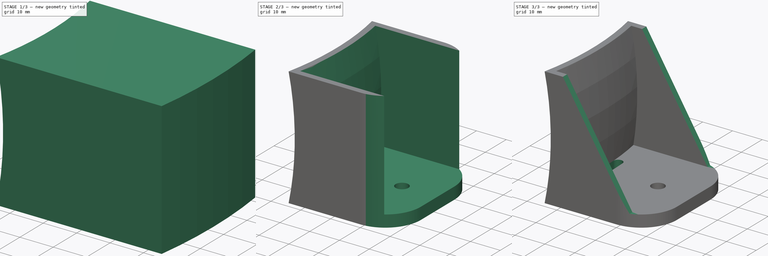
[diagram: build sequence overview — one tinted view per stage of 3, left to right]
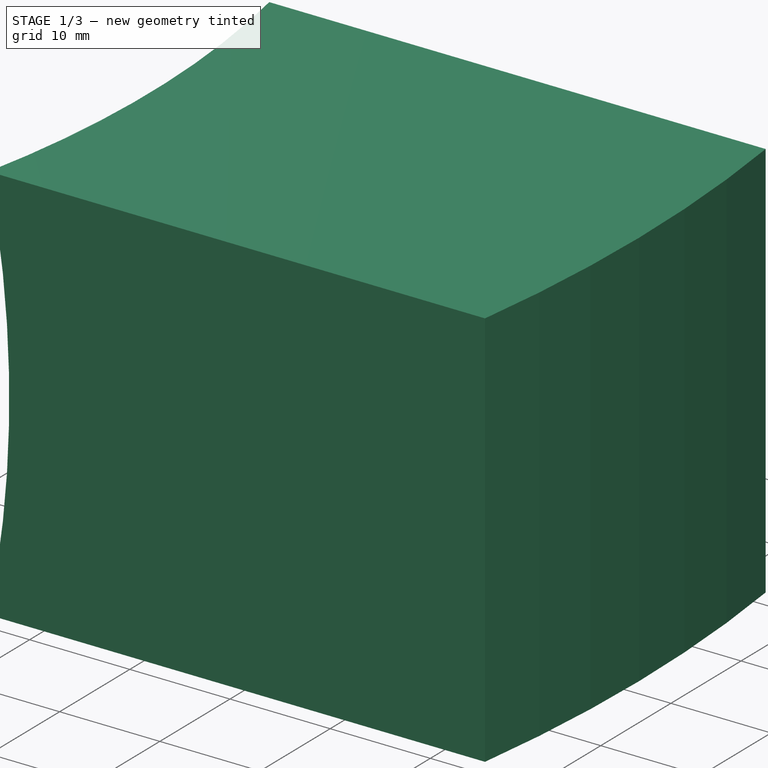
[diagram: stage 1 of 3 — iso view after this stage's code; geometry added in this stage tinted green]
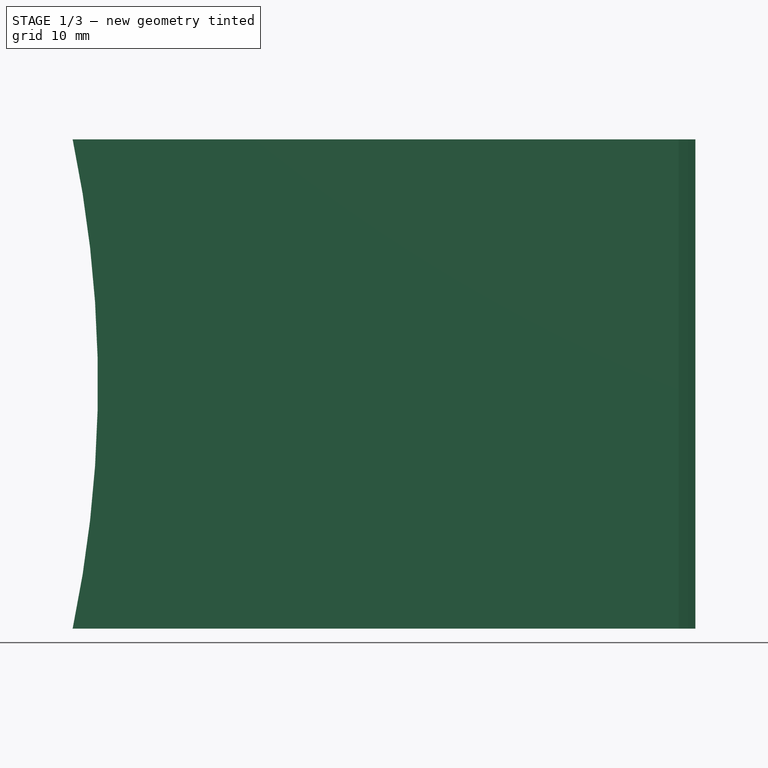
[diagram: stage 1 of 3 — front view after this stage's code; geometry added in this stage tinted green]
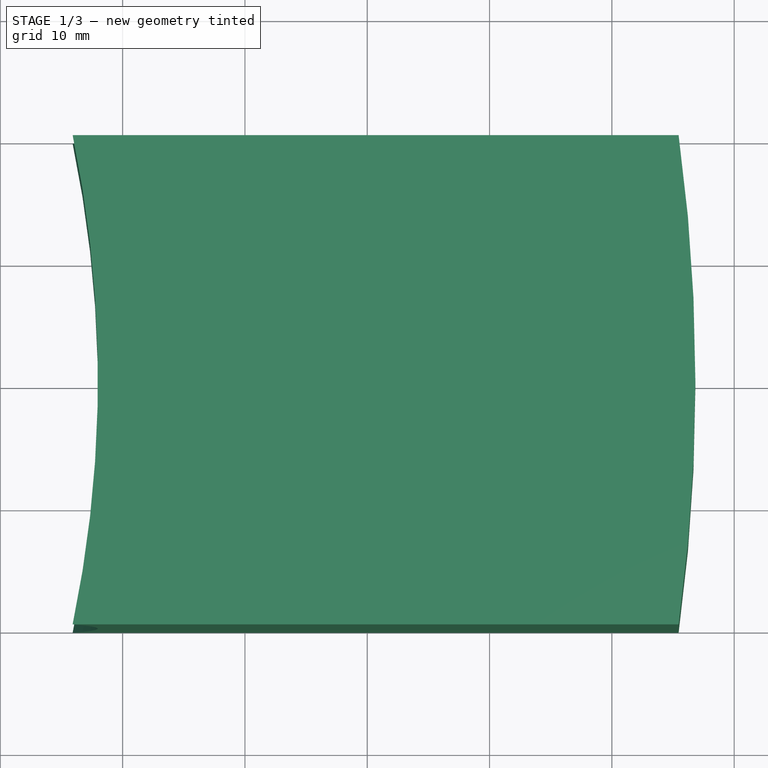
[diagram: stage 1 of 3 — top view after this stage's code; geometry added in this stage tinted green]
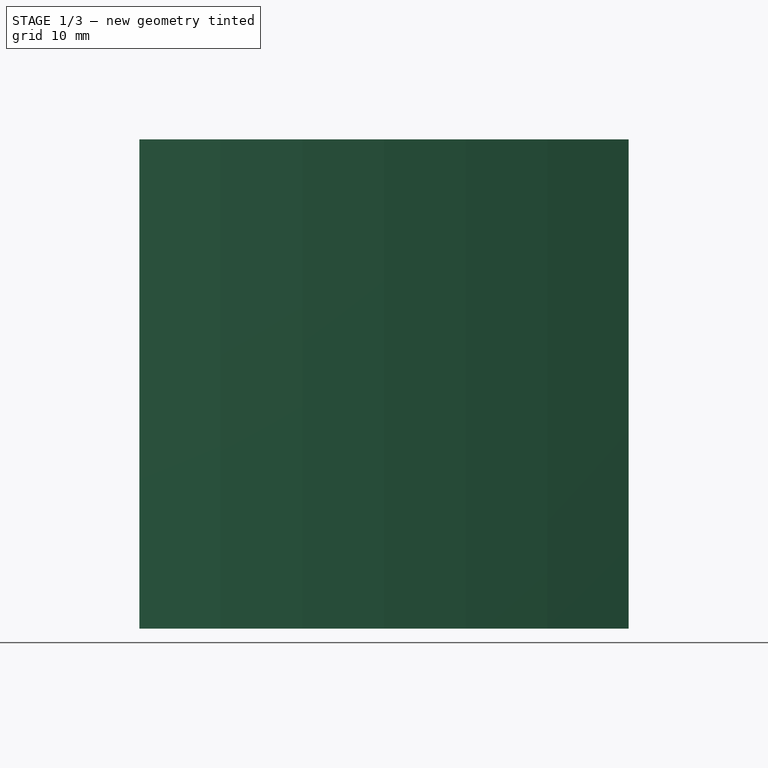
[diagram: stage 1 of 3 — right view after this stage's code; geometry added in this stage tinted green]
FCSTD DOCUMENT  (FreeCAD 0.20R29177 +426 (Git))
Label: SensorMountBase
License: All rights reserved
LicenseURL: http://en.wikipedia.org/wiki/All_rights_reserved
objects: Sketcher::SketchObject×6, PartDesign::Pocket×4, App::DocumentObjectGroup×3, PartDesign::CoordinateSystem×2, PartDesign::Revolution×1, PartDesign::Groove×1, PartDesign::Body×1, App::FeaturePython×1, App::Part×1
note: 21 computed .brp shape members not serialized (recipe doc carries the construction recipe); baked Part::Feature solids carry a one-line shape summary decoded from their .brp

FEATURE [Sketcher::SketchObject] Sketch  label="SectionSketch"
  FullyConstrained = true
  MapMode = 5
  Placement = pos=(0,0,0) rot=(1,0,0;1.5708rad)
  Support = -> [XZ_Plane]
  sketch-geometry (5):
    g0: ArcOfCircle CenterX=0 CenterY=0 CenterZ=0 NormalX=0 NormalY=0 NormalZ=1 AngleXU=0 Radius=100 StartAngle=6.03051 EndAngle=6.53587
    g1: LineSegment StartX=96.8246 StartY=25 StartZ=0 EndX=146.825 EndY=25 EndZ=0
    g2: LineSegment StartX=146.825 StartY=25 StartZ=0 EndX=146.825 EndY=-25 EndZ=0
    g3: LineSegment StartX=146.825 StartY=-25 StartZ=0 EndX=96.8246 EndY=-25 EndZ=0
    g4: LineSegment StartX=96.8246 StartY=-25 StartZ=0 EndX=96.8246 EndY=25 EndZ=0
  constraints (14):
    c: Radius(g0) = 100  'Radius'
    c: DistanceY(g0,g0) = 50
    c: Coincident(g0,g1)
    c: Coincident(g1,g2)
    c: Vertical(g2)
    c: Coincident(g2,g3)
    c: Coincident(g3,g0)
    c: Horizontal(g3)
    c: Horizontal(g1)
    c: DistanceX(g1,g1) = 50
    c: Coincident(g4,g0)
    c: Coincident(g4,g0)
    c: Vertical(g4)
    c: Coincident(g0,g-1)
FEATURE [PartDesign::Revolution] Revolution  label="Section"
  Angle = 45
  Axis = (0,2e-16,1)
  Base = (0,0,0)
  Midplane = true
  Placement = pos=(0,0,0) rot=(1,0,0;1.5708rad)
  Profile = -> Sketch
  ReferenceAxis = -> Sketch [V_Axis]
  Reversed = true
FEATURE [Sketcher::SketchObject] Sketch001  label="BlockoutSketch"
  FullyConstrained = true
  MapMode = 5
  Placement = pos=(0,0,0) rot=(0.57735,0.57735,0.57735;2.0944rad)
  Support = -> [YZ_Plane]
  sketch-geometry (10):
    g0: LineSegment StartX=-20 StartY=-20 StartZ=0 EndX=-20 EndY=20 EndZ=0
    g1: LineSegment StartX=-20 StartY=20 StartZ=0 EndX=20 EndY=20 EndZ=0
    g2: LineSegment StartX=20 StartY=20 StartZ=0 EndX=20 EndY=-20 EndZ=0
    g3: LineSegment StartX=20 StartY=-20 StartZ=0 EndX=-20 EndY=-20 EndZ=0
    g4: GeomPoint X=0 Y=0 Z=0
    g5: LineSegment StartX=-100 StartY=-50 StartZ=0 EndX=-100 EndY=50 EndZ=0
    g6: LineSegment StartX=-100 StartY=50 StartZ=0 EndX=100 EndY=50 EndZ=0
    g7: LineSegment StartX=100 StartY=50 StartZ=0 EndX=100 EndY=-50 EndZ=0
    g8: LineSegment StartX=100 StartY=-50 StartZ=0 EndX=-100 EndY=-50 EndZ=0
    g9: GeomPoint X=0 Y=0 Z=0
  constraints (24):
    c: Coincident(g0,g1)
    c: Coincident(g1,g2)
    c: Coincident(g2,g3)
    c: Coincident(g3,g0)
    c: Horizontal(g1)
    c: Horizontal(g3)
    c: Vertical(g0)
    c: Vertical(g2)
    c: Symmetric(g1,g0,g4)
    c: Coincident(g4,g-1)
    c: Coincident(g5,g6)
    c: Coincident(g6,g7)
    c: Coincident(g7,g8)
    c: Coincident(g8,g5)
    c: Horizontal(g6)
    c: Horizontal(g8)
    c: Vertical(g5)
    c: Vertical(g7)
    c: Symmetric(g6,g5,g9)
    c: Coincident(g9,g4)
    c: DistanceX(g6,g6) = 200
    c: DistanceY(g7,g7) = 100
    c: DistanceX(g1,g1) = 40  'Width'
    c: DistanceY(g2,g2) = 40  'Height'
FEATURE [PartDesign::Pocket] Pocket  label="Blockout"
  BaseFeature = -> Revolution
  Direction = (-1,2e-16,-3e-16)
  Length = 5
  Length2 = 5
  Placement = pos=(0,0,0) rot=(1,0,0;1.5708rad)
  Profile = -> Sketch001
  ReferenceAxis = -> Sketch001 [N_Axis]
  Reversed = true
  Type = 1
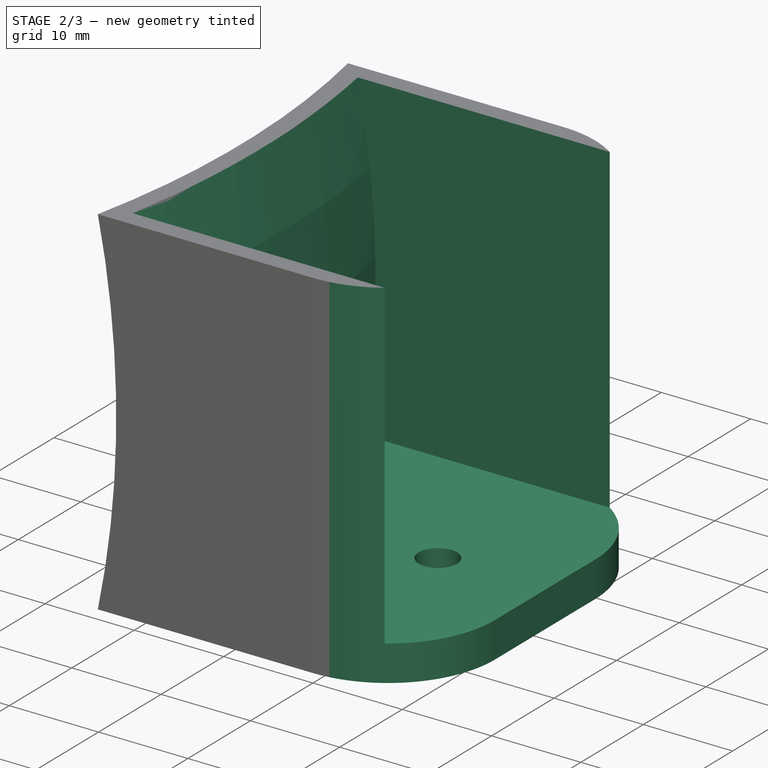
[diagram: stage 2 of 3 — iso view after this stage's code; geometry added in this stage tinted green]
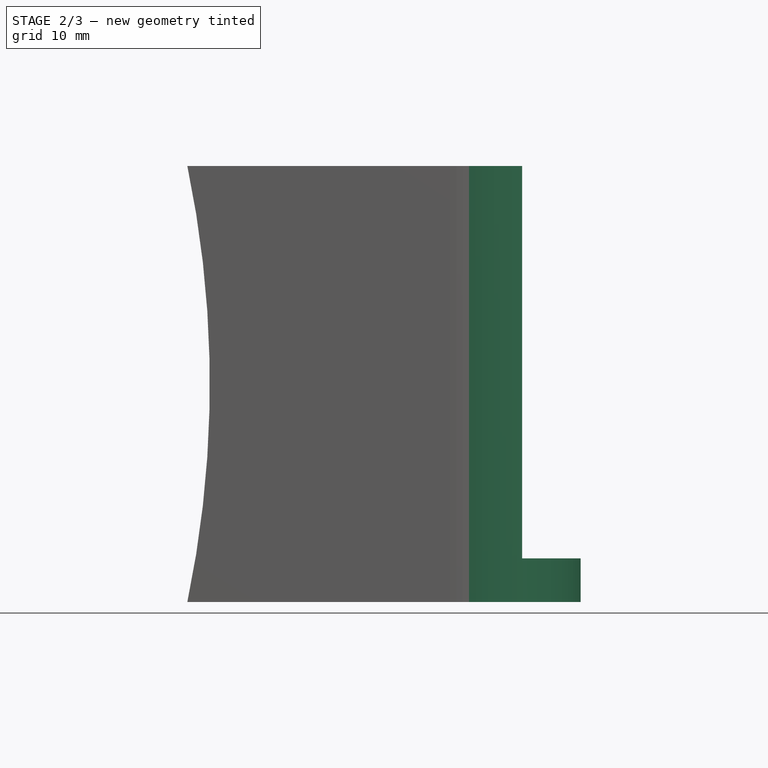
[diagram: stage 2 of 3 — front view after this stage's code; geometry added in this stage tinted green]
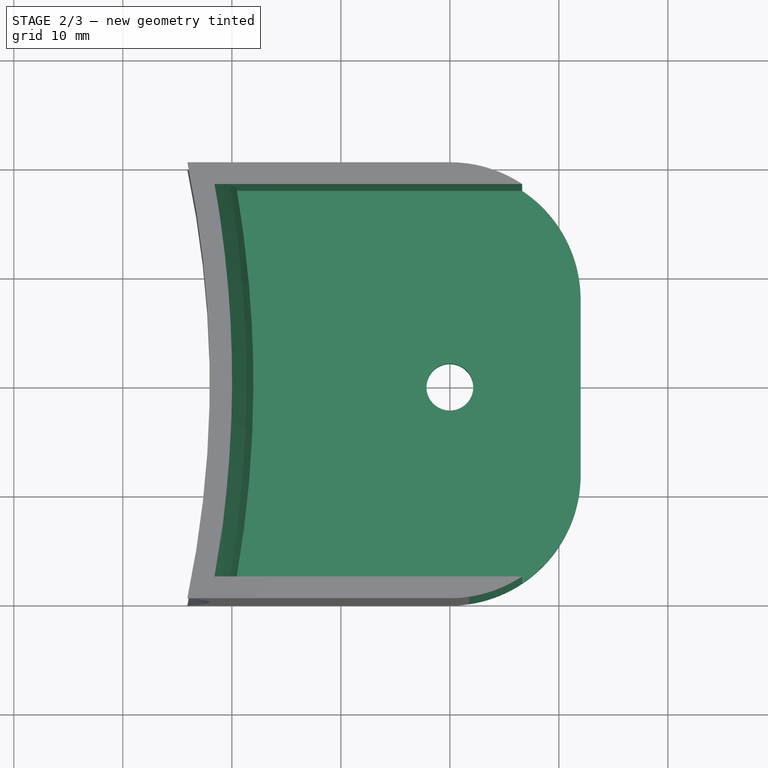
[diagram: stage 2 of 3 — top view after this stage's code; geometry added in this stage tinted green]
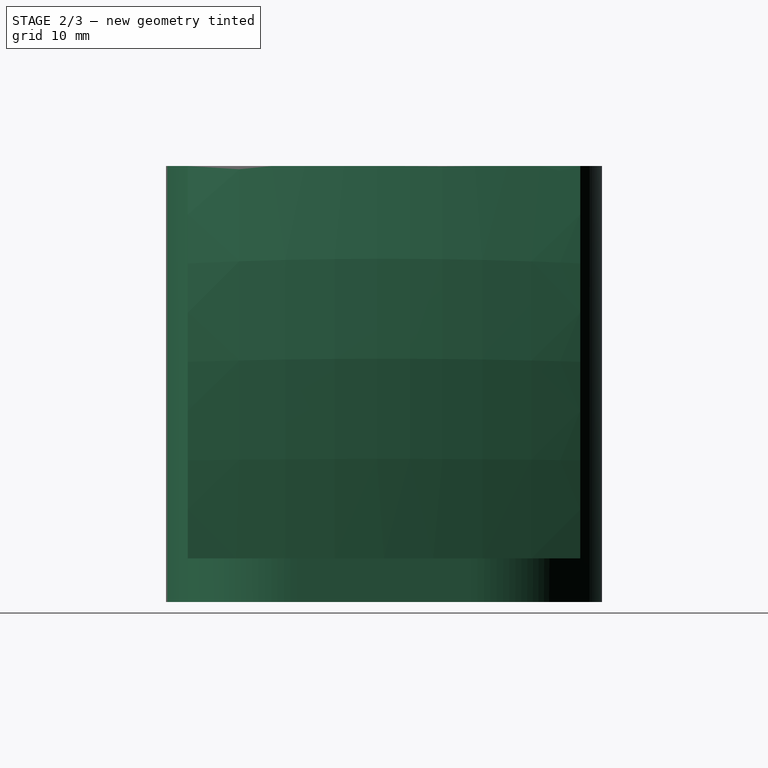
[diagram: stage 2 of 3 — right view after this stage's code; geometry added in this stage tinted green]
FEATURE [Sketcher::SketchObject] Sketch002
  FullyConstrained = true
  MapMode = 5
  Support = -> [XY_Plane]
  expr: Constraints[13] = <<SectionSketch>>.Constraints.Radius + 20mm
  expr: Constraints[20] = <<BlockoutSketch>>.Constraints.Width
  sketch-geometry (11):
    g0: LineSegment StartX=120 StartY=20 StartZ=0 EndX=120 EndY=30 EndZ=0
    g1: LineSegment StartX=120 StartY=30 StartZ=0 EndX=150 EndY=30 EndZ=0
    g2: LineSegment StartX=150 StartY=30 StartZ=0 EndX=150 EndY=-30 EndZ=0
    g3: LineSegment StartX=150 StartY=-30 StartZ=0 EndX=120 EndY=-30 EndZ=0
    g4: LineSegment StartX=120 StartY=-30 StartZ=0 EndX=120 EndY=-20 EndZ=0
    g5: Circle CenterX=120 CenterY=0 CenterZ=0 NormalX=0 NormalY=0 NormalZ=1 AngleXU=0 Radius=2.15
    g6: LineSegment StartX=120 StartY=20 StartZ=0 EndX=120 EndY=0 EndZ=0
    g7: LineSegment StartX=120 StartY=-20 StartZ=0 EndX=120 EndY=0 EndZ=0
    g8: ArcOfCircle CenterX=120 CenterY=-8 CenterZ=0 NormalX=0 NormalY=0 NormalZ=1 AngleXU=0 Radius=12 StartAngle=4.71239 EndAngle=6.28319
    g9: ArcOfCircle CenterX=120 CenterY=8 CenterZ=0 NormalX=0 NormalY=0 NormalZ=1 AngleXU=0 Radius=12 StartAngle=0 EndAngle=1.5708
    g10: LineSegment StartX=132 StartY=8 StartZ=0 EndX=132 EndY=-8 EndZ=0
  constraints (31):
    c: Vertical(g0)
    c: Coincident(g1,g0)
    c: Horizontal(g1)
    c: Coincident(g2,g1)
    c: Vertical(g2)
    c: Coincident(g3,g2)
    c: Horizontal(g3)
    c: Coincident(g4,g3)
    c: Vertical(g4)
    c: Equal(g4,g0)
    c: DistanceY(g0,g0) = 10
    c: DistanceX(g1,g1) = 30
    c: PointOnObject(g0,g4)
    c: DistanceX(g-1,g3) = 120
    c: Diameter(g5) = 4.3
    c: Coincident(g6,g0)
    c: Coincident(g6,g5)
    c: Coincident(g7,g4)
    c: Coincident(g7,g5)
    c: Equal(g7,g6)
    c: DistanceY(g4,g0) = 40
    c: PointOnObject(g8,g7)
    c: Coincident(g8,g4)
    c: PointOnObject(g9,g6)
    c: Coincident(g9,g0)
    c: Vertical(g10)
    c: PointOnObject(g5,g-1)
    c: Vertical(g7)
    c: Tangent(g10,g8) = 1.5708
    c: Tangent(g10,g9) = 1.5708
    c: DistanceX(g5,g9) = 12
FEATURE [PartDesign::Pocket] Pocket001  label="Nose"
  BaseFeature = -> Pocket
  Direction = (0,0,-1)
  Length = 5
  Length2 = 5
  Midplane = true
  Placement = pos=(0,0,0) rot=(1,0,0;1.5708rad)
  Profile = -> Sketch002
  ReferenceAxis = -> Sketch002 [N_Axis]
  Type = 1
FEATURE [Sketcher::SketchObject] Sketch003  label="HollowSketch"
  AttachmentOffset = pos=(0,0,-16) rot=(0,0,1;0rad)
  FullyConstrained = true
  MapMode = 5
  Placement = pos=(0,0,-16) rot=(0,0,1;0rad)
  Support = -> [XY_Plane]
  expr: .AttachmentOffset.Base.z = .Constraints.Offset * -1
  expr: .Constraints.Offset = <<BlockoutSketch>>.Constraints.Height / 2 - 4mm
  expr: .Constraints.Radius = <<SectionSketch>>.Constraints.Radius + 2mm
  expr: Constraints[10] = <<BlockoutSketch>>.Constraints.Width - 4mm
  sketch-geometry (6):
    g0: LineSegment StartX=159.136 StartY=-18 StartZ=0 EndX=159.136 EndY=18 EndZ=0
    g1: LineSegment StartX=159.136 StartY=18 StartZ=0 EndX=99.1365 EndY=18 EndZ=0
    g2: LineSegment StartX=99.1365 StartY=-18 StartZ=0 EndX=159.136 EndY=-18 EndZ=0
    g3: GeomPoint X=129.136 Y=0 Z=0
    g4: ArcOfCircle CenterX=-1.26272 CenterY=0 CenterZ=0 NormalX=0 NormalY=0 NormalZ=1 AngleXU=0 Radius=102 StartAngle=6.10579 EndAngle=6.46058
    g5: ArcOfCircle CenterX=100.737 CenterY=0 CenterZ=0 NormalX=0 NormalY=0 NormalZ=1 AngleXU=0 Radius=102 StartAngle=2.98408 EndAngle=3.29911
  constraints (19):
    c: Coincident(g0,g1)
    c: Coincident(g2,g0)
    c: Horizontal(g1)
    c: Horizontal(g2)
    c: Vertical(g0)
    c: Symmetric(g1,g0,g3)
    c: PointOnObject(g3,g-1)
    c: Coincident(g4,g1)
    c: Coincident(g4,g2)
    c: Radius(g4) = 102  'Radius'
    c: DistanceY(g0,g0) = 36
    c: DistanceX(g1,g1) = 60
    c: PointOnObject(g4,g-1)
    c: PointOnObject(g5,g-1)
    c: Equal(g4,g5)
    c: PointOnObject(g5,g-2)
    c: PointOnObject(g5,g-2)
    c: PointOnObject(g4,g5)
    c: DistanceY(g5,g-1) = 16  'Offset'
FEATURE [PartDesign::Groove] Groove  label="Hollow"
  Angle = 60
  Axis = (1e-16,1,-1e-16)
  Base = (0,0,0)
  BaseFeature = -> Pocket001
  Placement = pos=(0,0,0) rot=(1,0,0;1.5708rad)
  Profile = -> Sketch003
  ReferenceAxis = -> Y_Axis
  Reversed = true
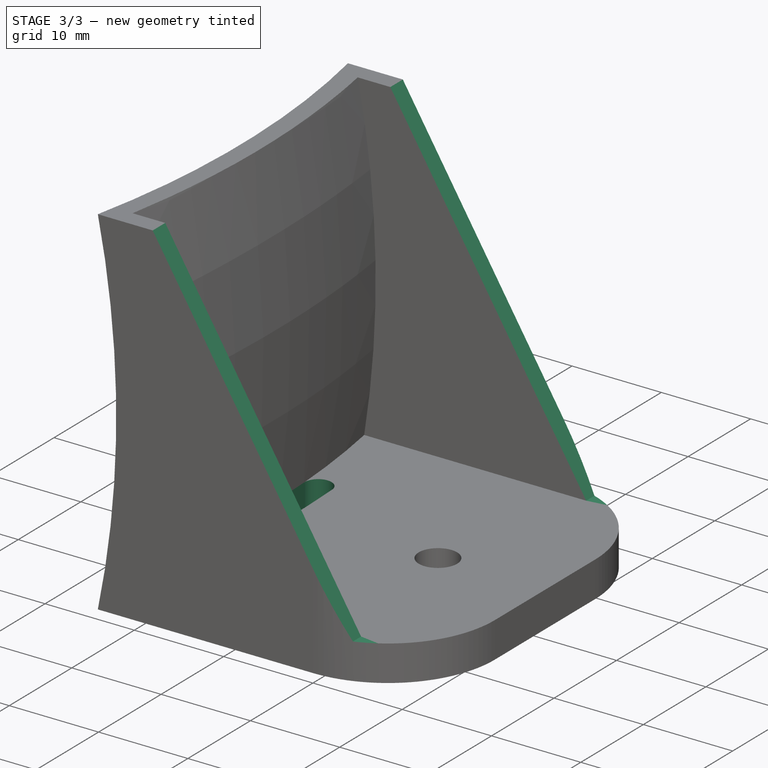
[diagram: stage 3 of 3 — iso view after this stage's code; geometry added in this stage tinted green]
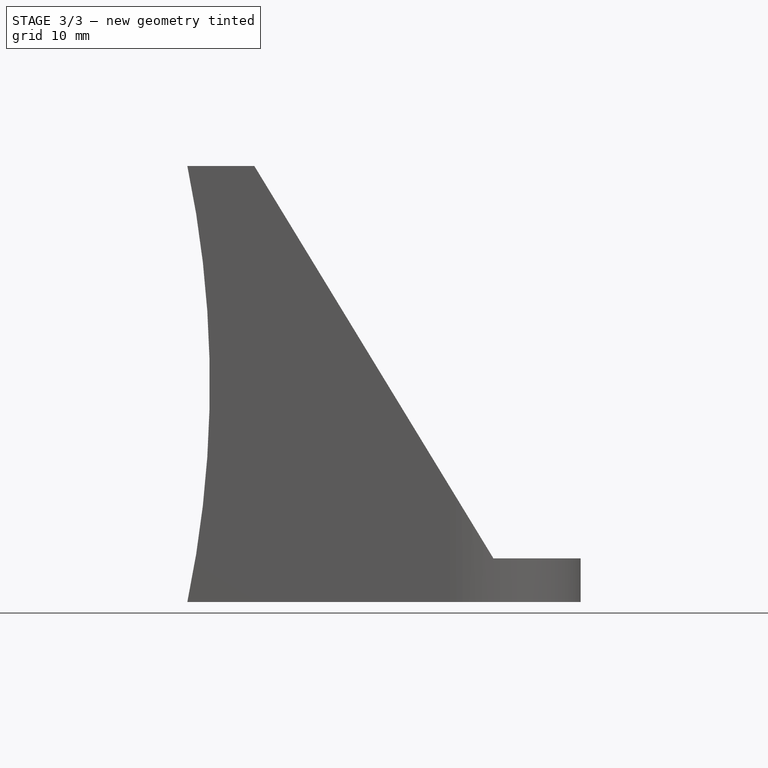
[diagram: stage 3 of 3 — front view after this stage's code; geometry added in this stage tinted green]
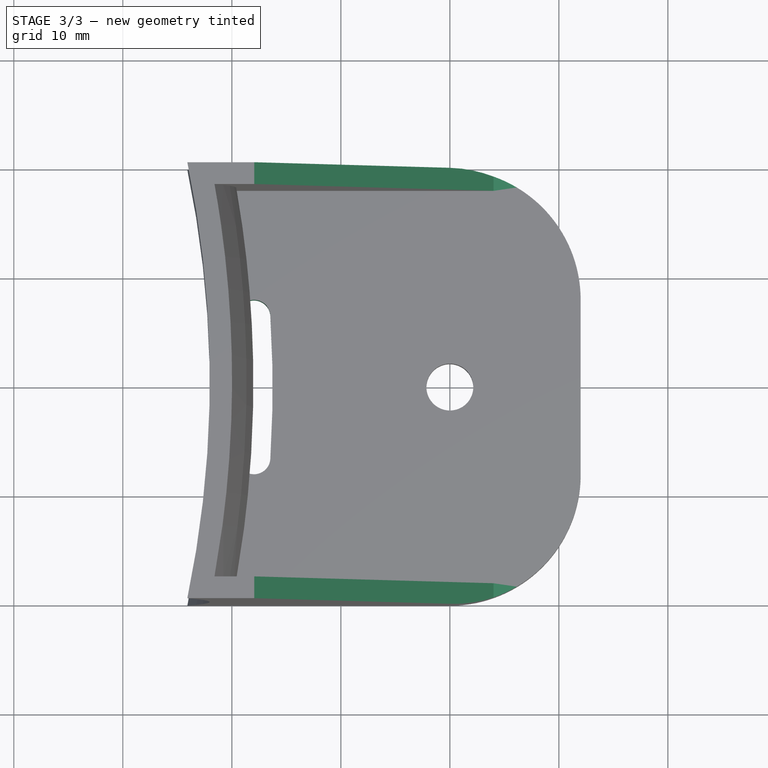
[diagram: stage 3 of 3 — top view after this stage's code; geometry added in this stage tinted green]
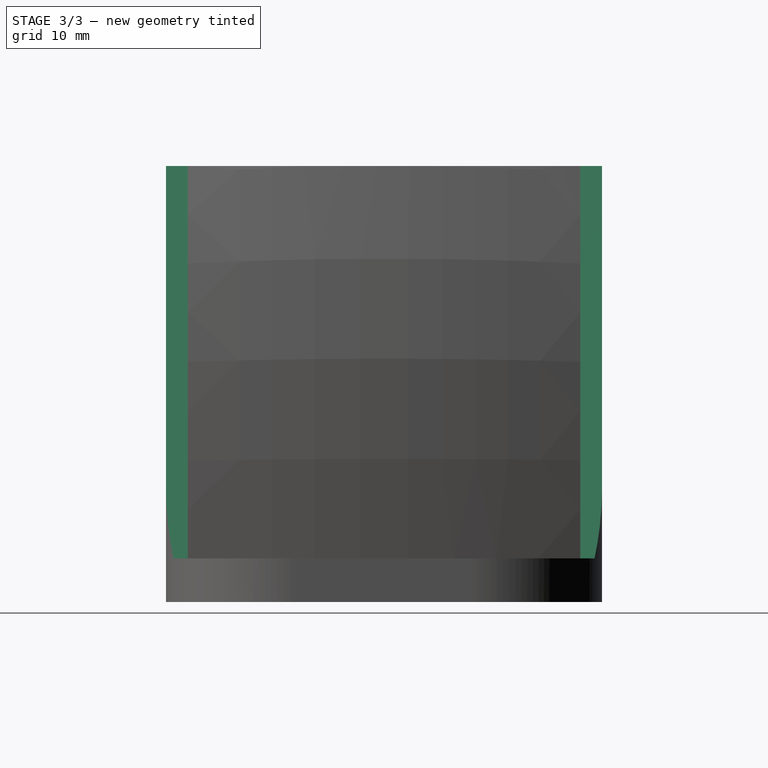
[diagram: stage 3 of 3 — right view after this stage's code; geometry added in this stage tinted green]
FEATURE [Sketcher::SketchObject] Sketch004
  FullyConstrained = true
  MapMode = 5
  Placement = pos=(0,0,0) rot=(1,0,0;1.5708rad)
  Support = -> [XZ_Plane]
  expr: Constraints[11] = <<HollowSketch>>.Constraints.Offset
  expr: Constraints[12] = <<HollowSketch>>.Constraints.Radius
  expr: Constraints[13] = <<BlockoutSketch>>.Constraints.Height / 2 + 0.1mm
  sketch-geometry (5):
    g0: LineSegment StartX=102 StartY=20.1 StartZ=0 EndX=124 EndY=-16 EndZ=0
    g1: LineSegment StartX=124 StartY=-16 StartZ=0 EndX=154 EndY=-16 EndZ=0
    g2: LineSegment StartX=154 StartY=-16 StartZ=0 EndX=154 EndY=30.1 EndZ=0
    g3: LineSegment StartX=154 StartY=30.1 StartZ=0 EndX=102 EndY=30.1 EndZ=0
    g4: LineSegment StartX=102 StartY=30.1 StartZ=0 EndX=102 EndY=20.1 EndZ=0
  constraints (15):
    c: Coincident(g0,g1)
    c: Horizontal(g1)
    c: Coincident(g1,g2)
    c: Vertical(g2)
    c: Coincident(g2,g3)
    c: Horizontal(g3)
    c: Coincident(g3,g4)
    c: Coincident(g4,g0)
    c: Vertical(g4)
    c: DistanceY(g4,g4) = 10
    c: DistanceX(g1,g1) = 30
    c: DistanceY(g0,g-1) = 16
    c: DistanceX(g-1,g0) = 102
    c: DistanceY(g-1,g0) = 20.1
    c: DistanceX(g0,g0) = 22
FEATURE [PartDesign::Pocket] Pocket002  label="Ribs"
  BaseFeature = -> Groove
  Direction = (0,1,2e-16)
  Length = 5
  Length2 = 5
  Midplane = true
  Placement = pos=(0,0,0) rot=(1,0,0;1.5708rad)
  Profile = -> Sketch004
  ReferenceAxis = -> Sketch004 [N_Axis]
  Type = 1
FEATURE [Sketcher::SketchObject] Sketch005  label="HollowSketch001"
  AttachmentOffset = pos=(0,0,-16) rot=(0,0,1;0rad)
  FullyConstrained = true
  MapMode = 5
  Placement = pos=(0,0,-16) rot=(0,0,1;0rad)
  Support = -> [XY_Plane]
  expr: .AttachmentOffset.Base.z = .Constraints.Offset * -1
  expr: .Constraints.Offset = <<HollowSketch>>.Constraints.Offset
  expr: .Constraints.Radius = <<HollowSketch>>.Constraints.Radius
  expr: Constraints[10] = <<BlockoutSketch>>.Constraints.Width - 4mm
  sketch-geometry (12):
    g0: LineSegment StartX=159.136 StartY=-18 StartZ=0 EndX=159.136 EndY=18 EndZ=0
    g1: LineSegment StartX=159.136 StartY=18 StartZ=0 EndX=99.1365 EndY=18 EndZ=0
    g2: LineSegment StartX=99.1365 StartY=-18 StartZ=0 EndX=159.136 EndY=-18 EndZ=0
    g3: GeomPoint X=129.136 Y=0 Z=0
    g4: ArcOfCircle CenterX=-1.26272 CenterY=0 CenterZ=0 NormalX=0 NormalY=0 NormalZ=1 AngleXU=0 Radius=102 StartAngle=6.10579 EndAngle=6.46058
    g5: ArcOfCircle CenterX=100.737 CenterY=0 CenterZ=0 NormalX=0 NormalY=0 NormalZ=1 AngleXU=0 Radius=102 StartAngle=2.98408 EndAngle=3.29911
    g6: ArcOfCircle CenterX=-1.26272 CenterY=-9.9e-14 CenterZ=0 NormalX=0 NormalY=0 NormalZ=1 AngleXU=0 Radius=102 StartAngle=6.22034 EndAngle=6.34603
    g7: ArcOfCircle CenterX=102.033 CenterY=6.5 CenterZ=0 NormalX=0 NormalY=0 NormalZ=1 AngleXU=0 Radius=1.5 StartAngle=0.0628433 EndAngle=3.20444
    g8: ArcOfCircle CenterX=102.033 CenterY=-6.5 CenterZ=0 NormalX=0 NormalY=0 NormalZ=1 AngleXU=0 Radius=1.5 StartAngle=3.07875 EndAngle=6.22034
    g9: ArcOfCircle CenterX=-1.26272 CenterY=-9.9e-14 CenterZ=0 NormalX=0 NormalY=0 NormalZ=1 AngleXU=0 Radius=105 StartAngle=6.22034 EndAngle=6.34603
    g10: LineSegment StartX=102.033 StartY=6.5 StartZ=0 EndX=102.033 EndY=0 EndZ=0
    g11: LineSegment StartX=102.033 StartY=0 StartZ=0 EndX=102.033 EndY=-6.5 EndZ=0
  constraints (35):
    c: Coincident(g0,g1)
    c: Coincident(g2,g0)
    c: Horizontal(g1)
    c: Horizontal(g2)
    c: Vertical(g0)
    c: Symmetric(g1,g0,g3)
    c: PointOnObject(g3,g-1)
    c: Coincident(g4,g1)
    c: Coincident(g4,g2)
    c: Radius(g4) = 102  'Radius'
    c: DistanceY(g0,g0) = 36
    c: DistanceX(g1,g1) = 60
    c: PointOnObject(g4,g-1)
    c: PointOnObject(g5,g-1)
    c: Equal(g4,g5)
    c: PointOnObject(g5,g-2)
    c: PointOnObject(g5,g-2)
    c: PointOnObject(g4,g5)
    c: DistanceY(g5,g-1) = 16  'Offset'
    c: PointOnObject(g6,g4)
    c: PointOnObject(g6,g4)
    c: Equal(g6,g4)
    c: Tangent(g8,g6) = 1.5708
    c: Tangent(g7,g6) = 1.5708
    c: Tangent(g9,g7) = -1.5708
    c: Tangent(g9,g8) = -1.5708
    c: Diameter(g7) = 3
    c: Distance(g7,g8) = 13
    c: Coincident(g9,g6)
    c: Coincident(g10,g7)
    c: PointOnObject(g10,g-1)
    c: Coincident(g11,g10)
    c: Coincident(g11,g8)
    c: PointOnObject(g7,g11)
    c: Equal(g11,g10)
FEATURE [PartDesign::Pocket] Pocket003  label="StrapSlot"
  BaseFeature = -> Pocket002
  Direction = (0,0,-1)
  Length = 5
  Length2 = 5
  Placement = pos=(0,0,0) rot=(1,0,0;1.5708rad)
  Profile = -> Sketch005
  ReferenceAxis = -> Sketch005 [N_Axis]
  Type = 1
FEATURE [PartDesign::Body] Body
  Group = -> [Sketch,Revolution,Sketch001,Pocket,Sketch002,Pocket001,Sketch003,Groove,Sketch004,Pocket002,Sketch005,Pocket003]
  Origin = -> Origin
  Tip = -> Pocket003
FEATURE [App::DocumentObjectGroup] Parts
FEATURE [PartDesign::CoordinateSystem] LCS_Origin
  AttacherType = Attacher::AttachEngine3D
  MapMode = 2
  Support = -> [X_Axis001]
FEATURE [App::DocumentObjectGroup] Constraints
FEATURE [App::FeaturePython] Variables  # WARN: FeaturePython — macro-defined, semantics opaque (R4)
  Type = App::PropertyContainer
FEATURE [App::DocumentObjectGroup] Configurations
FEATURE [PartDesign::CoordinateSystem] LCS_Pivot
  AttacherType = Attacher::AttachEngine3D
  MapMode = 11
  Placement = pos=(120,-8.9e-15,-20) rot=(0,0,1;1.5708rad)
  Support = -> [Pocket003]
FEATURE [App::Part] Assembly
  AssemblyType = Part::Link
  Group = -> [LCS_Origin,Constraints,Variables,Configurations,Body,LCS_Pivot]
  Origin = -> Origin001
  Type = Assembly
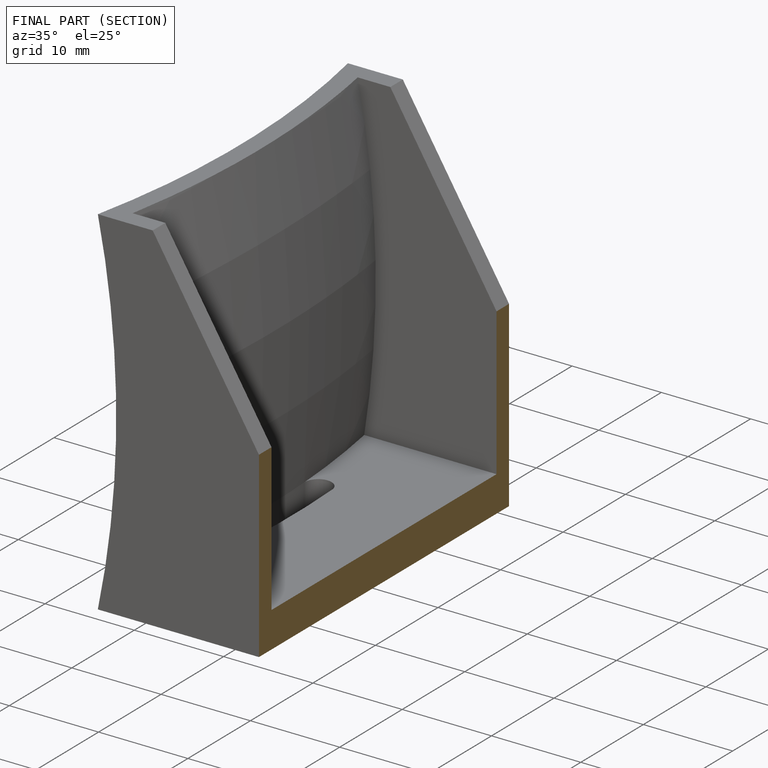
[diagram: finished part — half-section view (interior)]
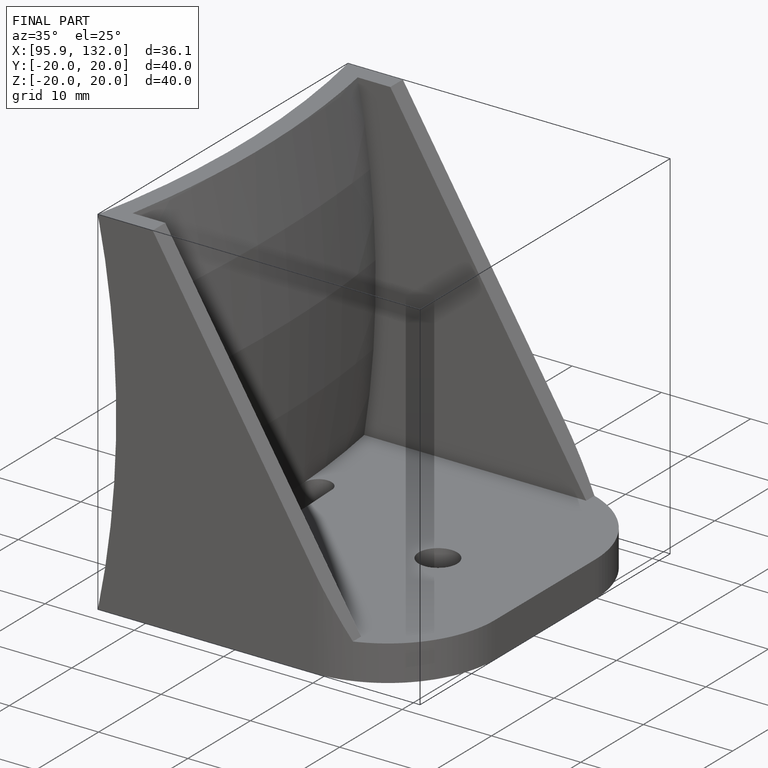
[diagram: finished part — iso view with bounding-box wireframe]
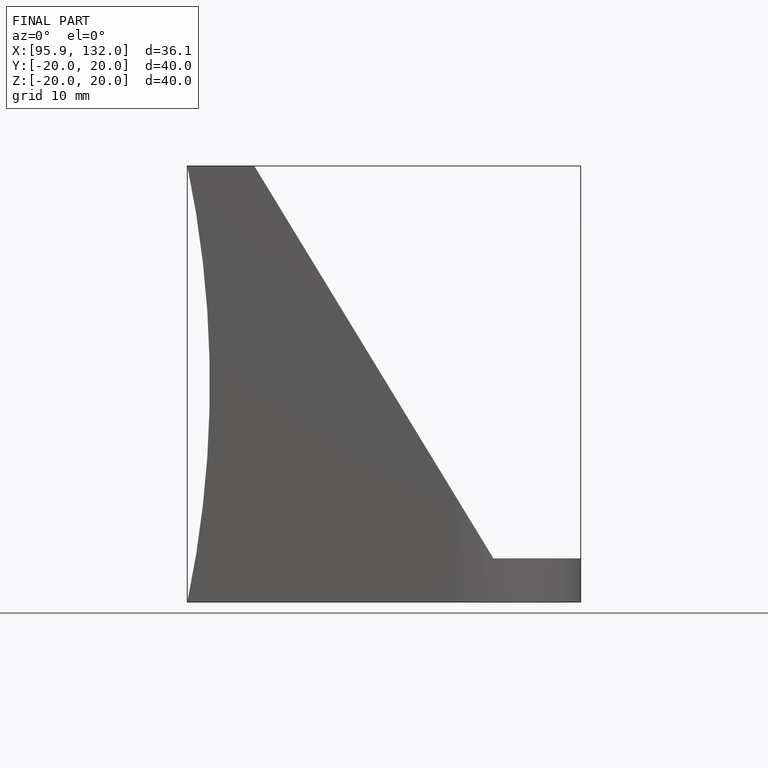
[diagram: finished part — front view with bounding-box wireframe]
